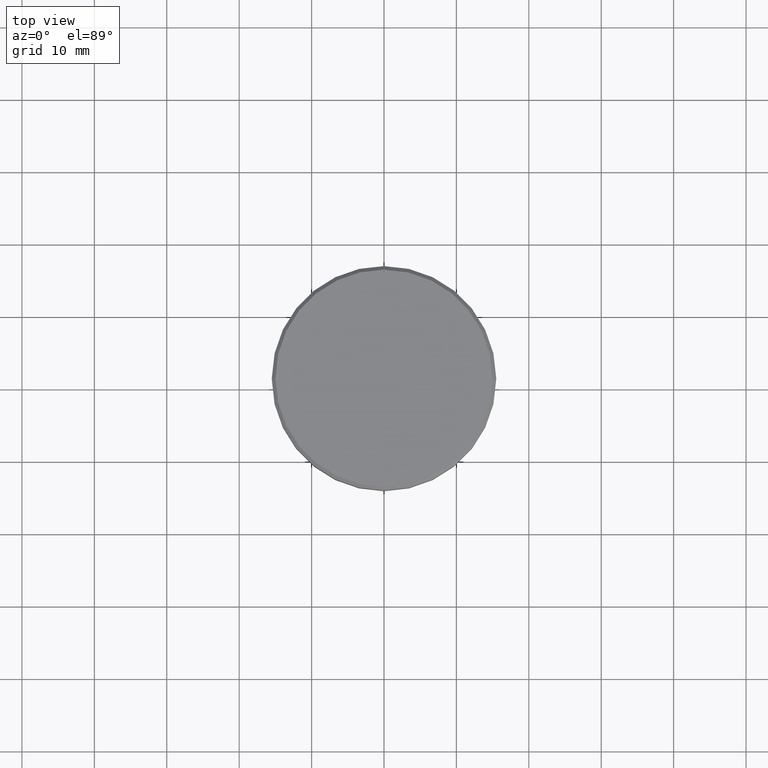
[diagram: clean part render]
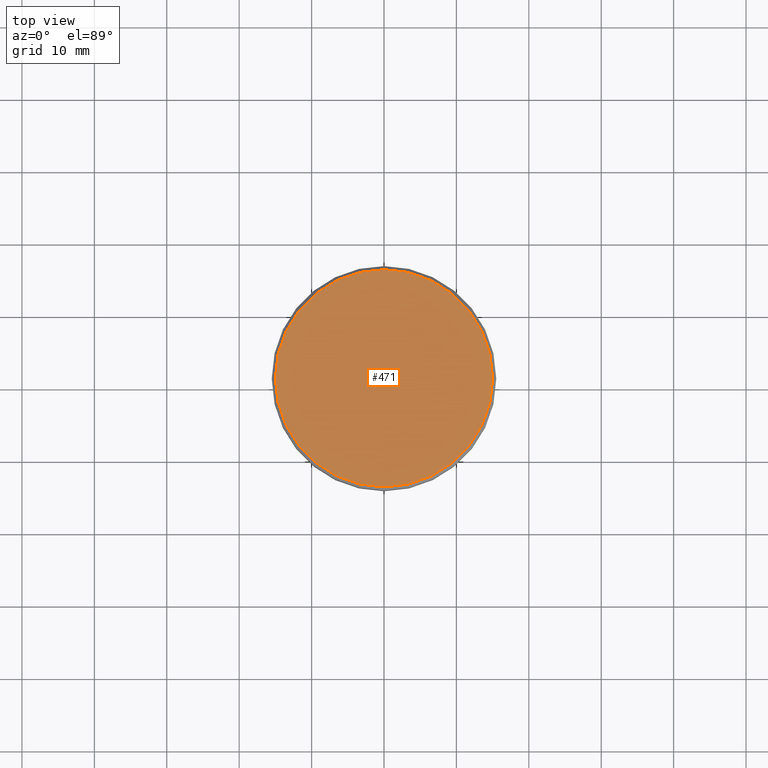
[diagram: same view with one face highlighted and labeled with its STEP entity id]
A machine part, top view. The second image highlights one B-rep face of the part: STEP entity #471.
In plain terms, the highlighted planar face has unit normal (0, -0, 1).
Its self-contained STEP definition (entity closure, byte-faithful):
#50 = AXIS2_PLACEMENT_3D ( 'NONE', #1089, #1072, #616 ) ;
#59 = CARTESIAN_POINT ( 'NONE',  ( 0.000000000000000000, 0.000000000000000000, 0.000000000000000000 ) ) ;
#65 = PLANE ( 'NONE',  #878 ) ;
#186 = EDGE_CURVE ( 'NONE', #421, #725, #771, .T. ) ;
#239 = FACE_OUTER_BOUND ( 'NONE', #638, .T. ) ;
#255 = ORIENTED_EDGE ( 'NONE', *, *, #982, .T. ) ;
#259 = CARTESIAN_POINT ( 'NONE',  ( 0.000000000000000000, 0.000000000000000000, 0.000000000000000000 ) ) ;
#393 = ORIENTED_EDGE ( 'NONE', *, *, #186, .T. ) ;
#421 = VERTEX_POINT ( 'NONE', #706 ) ;
#471 = ADVANCED_FACE ( 'NONE', ( #239 ), #65, .T. ) ;
#526 = CARTESIAN_POINT ( 'NONE',  ( -15.00000000000000000, 0.000000000000000000, 0.000000000000000000 ) ) ;
#534 = DIRECTION ( 'NONE',  ( -0.000000000000000000, -0.000000000000000000, 1.000000000000000000 ) ) ;
#616 = DIRECTION ( 'NONE',  ( 1.000000000000000000, 0.000000000000000000, 0.000000000000000000 ) ) ;
#638 = EDGE_LOOP ( 'NONE', ( #255, #393 ) ) ;
#706 = CARTESIAN_POINT ( 'NONE',  ( 15.00000000000000000, 1.867586368699713376E-15, 0.000000000000000000 ) ) ;
#725 = VERTEX_POINT ( 'NONE', #526 ) ;
#755 = CIRCLE ( 'NONE', #50, 15.00000000000000000 ) ;
#771 = CIRCLE ( 'NONE', #1013, 15.00000000000000000 ) ;
#813 = DIRECTION ( 'NONE',  ( 1.000000000000000000, 0.000000000000000000, 0.000000000000000000 ) ) ;
#866 = DIRECTION ( 'NONE',  ( 1.000000000000000000, 0.000000000000000000, 0.000000000000000000 ) ) ;
#878 = AXIS2_PLACEMENT_3D ( 'NONE', #59, #1164, #866 ) ;
#982 = EDGE_CURVE ( 'NONE', #725, #421, #755, .T. ) ;
#1013 = AXIS2_PLACEMENT_3D ( 'NONE', #259, #534, #813 ) ;
#1072 = DIRECTION ( 'NONE',  ( -0.000000000000000000, -0.000000000000000000, 1.000000000000000000 ) ) ;
#1089 = CARTESIAN_POINT ( 'NONE',  ( 0.000000000000000000, 0.000000000000000000, 0.000000000000000000 ) ) ;
#1164 = DIRECTION ( 'NONE',  ( 0.000000000000000000, -0.000000000000000000, 1.000000000000000000 ) ) ;